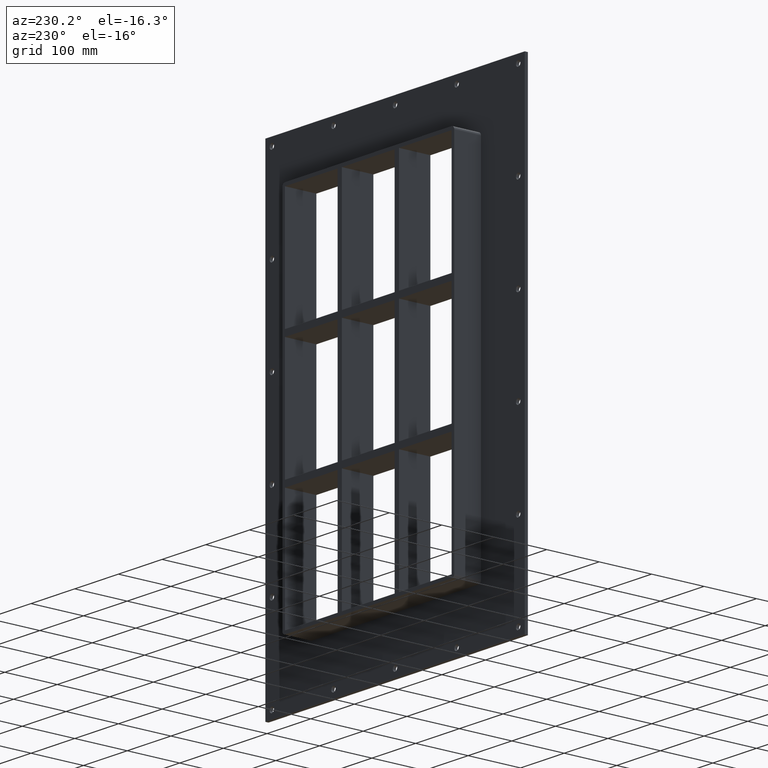
[diagram: clean part render]
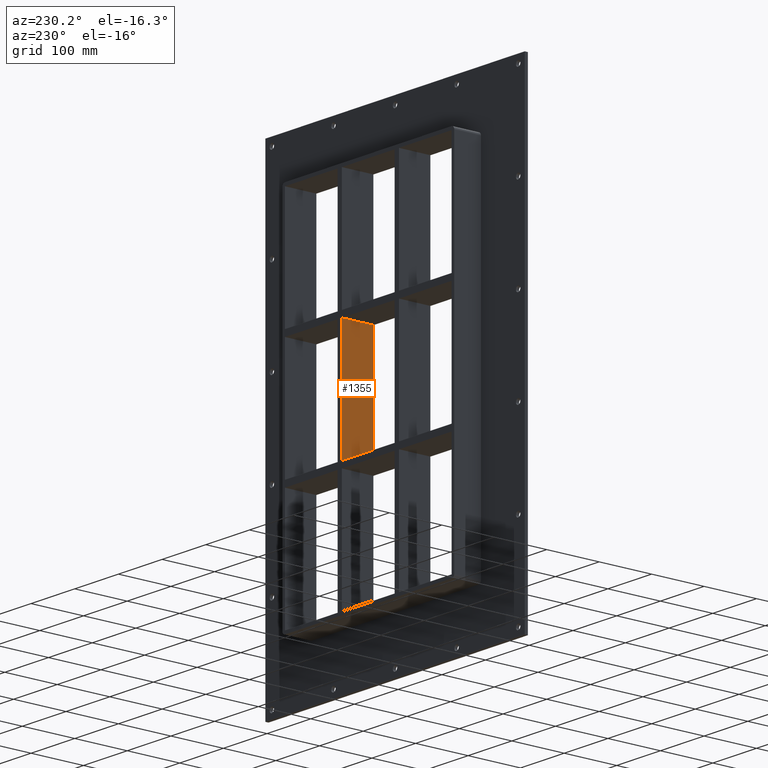
[diagram: same view with one face highlighted and labeled with its STEP entity id]
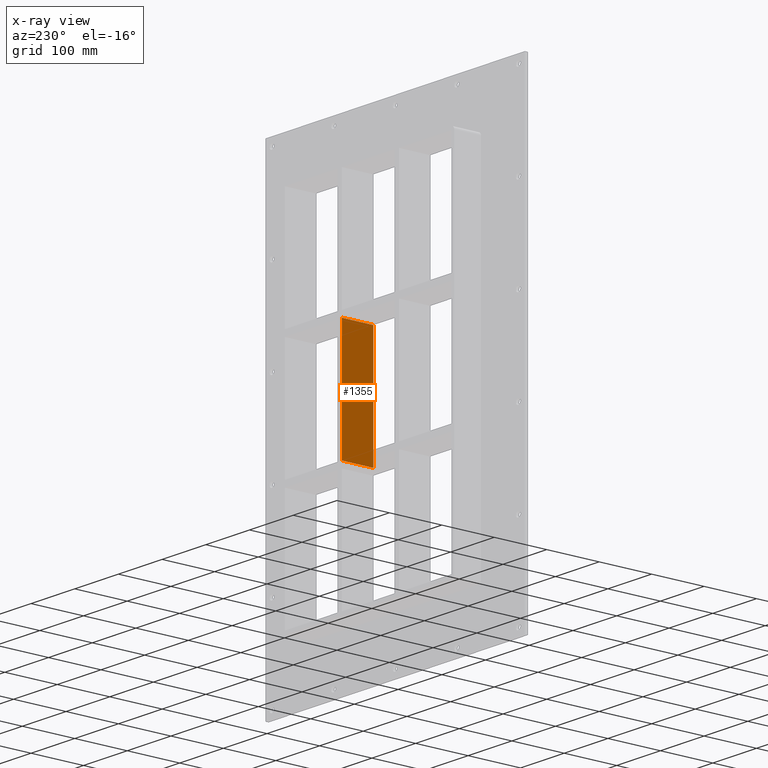
[diagram: x-ray of the same camera — body ghosted, the highlighted face saturated]
A machine part, auxiliary view. The second image highlights one B-rep face of the part: STEP entity #1355.
The next image is the same camera in x-ray: the body ghosted, the highlighted face saturated — about 0% of this face is hidden behind the body in this view.
In plain terms, the highlighted planar face has unit normal (-1, 0, 0).
Its self-contained STEP definition (entity closure, byte-faithful):
#657=CARTESIAN_POINT('',(60.249999999998579,-3.0,108.99999999999066));
#658=VERTEX_POINT('',#657);
#659=CARTESIAN_POINT('',(60.249999999998579,57.0,108.99999999999066));
#660=VERTEX_POINT('',#659);
#661=CARTESIAN_POINT('',(60.249999999998593,-3.0,108.99999999999068));
#662=DIRECTION('',(0.0,1.0,0.0));
#663=VECTOR('',#662,60.0);
#664=LINE('',#661,#663);
#665=EDGE_CURVE('',#658,#660,#664,.T.);
#1202=CARTESIAN_POINT('',(60.249999999998629,57.0,-109.00000000000006));
#1203=VERTEX_POINT('',#1202);
#1210=CARTESIAN_POINT('',(60.249999999998629,57.0,-109.00000000000006));
#1211=DIRECTION('',(0.0,0.0,1.0));
#1212=VECTOR('',#1211,217.99999999999073);
#1213=LINE('',#1210,#1212);
#1214=EDGE_CURVE('',#1203,#660,#1213,.T.);
#1332=CARTESIAN_POINT('',(60.249999999998671,-3.0,-339.00000000000006));
#1333=DIRECTION('',(-1.0,0.0,0.0));
#1334=DIRECTION('',(0.0,0.0,1.0));
#1335=AXIS2_PLACEMENT_3D('',#1332,#1333,#1334);
#1336=PLANE('',#1335);
#1337=ORIENTED_EDGE('',*,*,#665,.T.);
#1338=ORIENTED_EDGE('',*,*,#1214,.F.);
#1339=CARTESIAN_POINT('',(60.249999999998629,-3.0,-109.00000000000006));
#1340=VERTEX_POINT('',#1339);
#1341=CARTESIAN_POINT('',(60.249999999998636,-3.0,-109.00000000000006));
#1342=DIRECTION('',(0.0,1.0,0.0));
#1343=VECTOR('',#1342,60.0);
#1344=LINE('',#1341,#1343);
#1345=EDGE_CURVE('',#1340,#1203,#1344,.T.);
#1346=ORIENTED_EDGE('',*,*,#1345,.F.);
#1347=CARTESIAN_POINT('',(60.249999999998629,-3.0,-109.00000000000006));
#1348=DIRECTION('',(0.0,0.0,1.0));
#1349=VECTOR('',#1348,217.99999999999073);
#1350=LINE('',#1347,#1349);
#1351=EDGE_CURVE('',#1340,#658,#1350,.T.);
#1352=ORIENTED_EDGE('',*,*,#1351,.T.);
#1353=EDGE_LOOP('',(#1337,#1338,#1346,#1352));
#1354=FACE_OUTER_BOUND('',#1353,.T.);
#1355=ADVANCED_FACE('',(#1354),#1336,.T.);